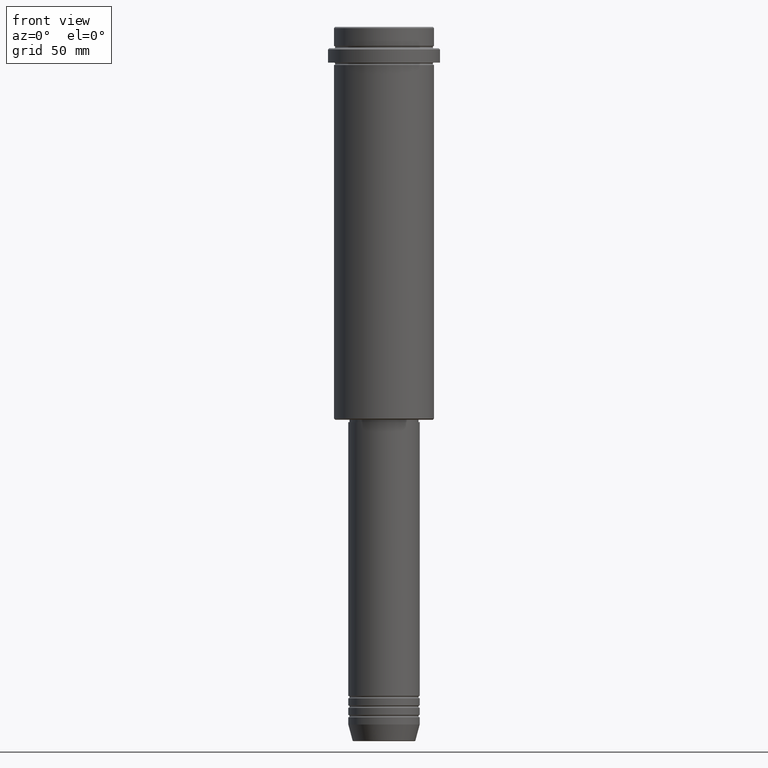
[diagram: clean part render]
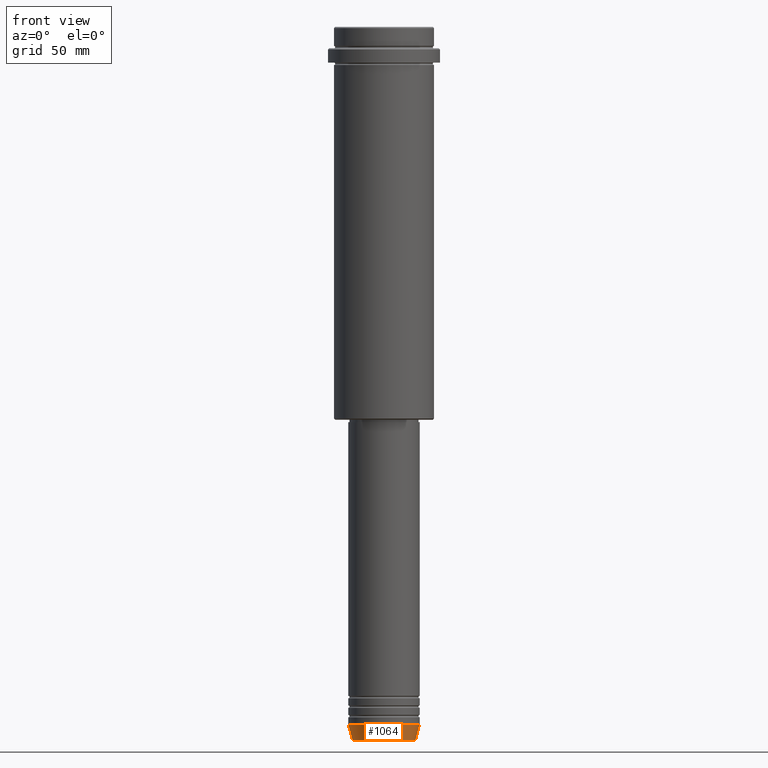
[diagram: same view with one face highlighted and labeled with its STEP entity id]
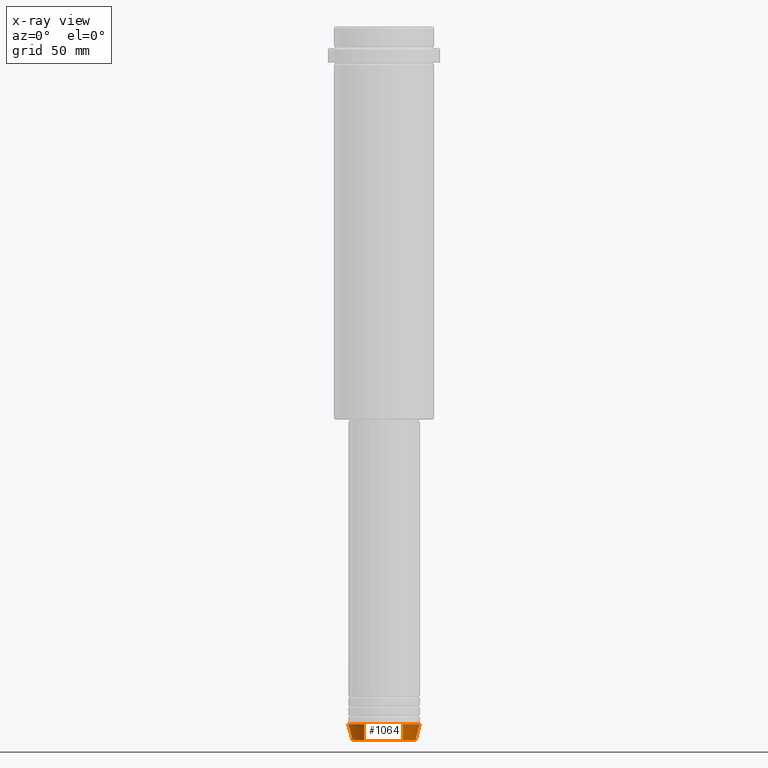
[diagram: x-ray of the same camera — body ghosted, the highlighted face saturated]
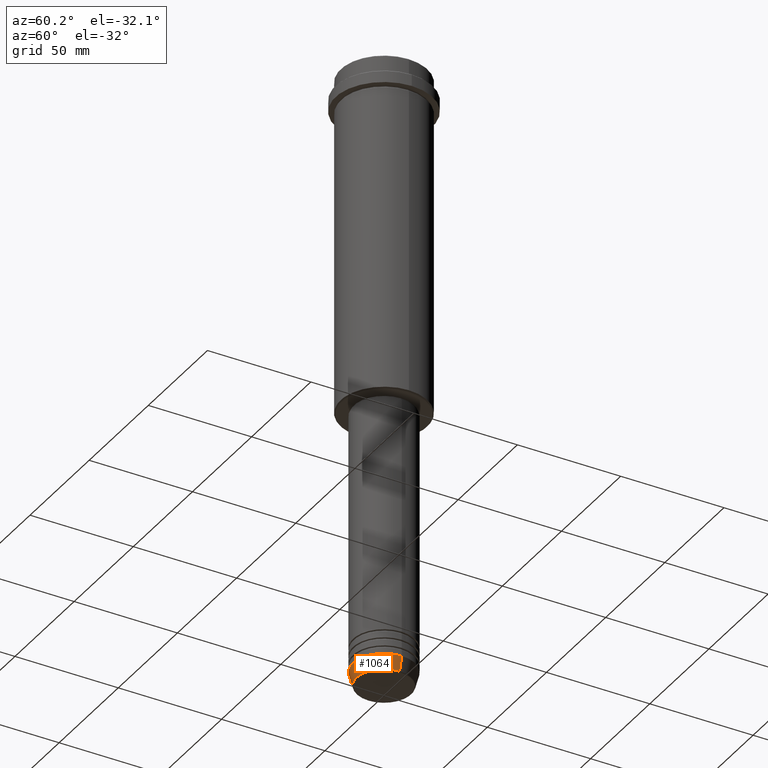
[diagram: same view with one face highlighted and labeled with its STEP entity id]
A machine part, front view. The second image highlights one B-rep face of the part: STEP entity #1064.
The next image is the same camera in x-ray: the body ghosted, the highlighted face saturated — about 0% of this face is hidden behind the body in this view.
A second angle (auxiliary view) of the same face is appended — the face is thin or edge-on in the first view.
In plain terms, the highlighted conical surface has half-angle 15 deg.
Its self-contained STEP definition (entity closure, byte-faithful):
#57 = ORIENTED_EDGE ( 'NONE', *, *, #199, .F. ) ;
#66 = EDGE_LOOP ( 'NONE', ( #57, #1006, #518, #193 ) ) ;
#104 = CARTESIAN_POINT ( 'NONE',  ( 0.000000000000000000, 0.000000000000000000, -293.0000000000000568 ) ) ;
#165 = DIRECTION ( 'NONE',  ( -0.000000000000000000, -0.000000000000000000, 1.000000000000000000 ) ) ;
#191 = EDGE_CURVE ( 'NONE', #206, #961, #679, .T. ) ;
#193 = ORIENTED_EDGE ( 'NONE', *, *, #191, .F. ) ;
#199 = EDGE_CURVE ( 'NONE', #802, #206, #1191, .T. ) ;
#206 = VERTEX_POINT ( 'NONE', #1083 ) ;
#247 = CARTESIAN_POINT ( 'NONE',  ( -15.00000000000000000, 1.836970198721029589E-15, -293.0000000000000568 ) ) ;
#254 = DIRECTION ( 'NONE',  ( -0.000000000000000000, -0.000000000000000000, 1.000000000000000000 ) ) ;
#273 = FACE_OUTER_BOUND ( 'NONE', #66, .T. ) ;
#290 = CARTESIAN_POINT ( 'NONE',  ( 13.22365507213718772, 0.000000000000000000, -299.6294095225513274 ) ) ;
#303 = DIRECTION ( 'NONE',  ( 0.2588190451025213501, 0.000000000000000000, 0.9659258262890680902 ) ) ;
#321 = DIRECTION ( 'NONE',  ( -0.2588190451025213501, 3.169619151431772337E-17, 0.9659258262890680902 ) ) ;
#393 = VECTOR ( 'NONE', #321, 1000.000000000000000 ) ;
#423 = EDGE_CURVE ( 'NONE', #802, #1203, #508, .T. ) ;
#508 = CIRCLE ( 'NONE', #1323, 13.22365507213718772 ) ;
#518 = ORIENTED_EDGE ( 'NONE', *, *, #1117, .T. ) ;
#521 = LINE ( 'NONE', #1408, #954 ) ;
#532 = DIRECTION ( 'NONE',  ( -0.000000000000000000, -0.000000000000000000, 1.000000000000000000 ) ) ;
#555 = CARTESIAN_POINT ( 'NONE',  ( -13.22365507213718772, 1.728200442216588386E-15, -299.6294095225513274 ) ) ;
#601 = DIRECTION ( 'NONE',  ( 1.000000000000000000, 0.000000000000000000, 0.000000000000000000 ) ) ;
#616 = CARTESIAN_POINT ( 'NONE',  ( 0.000000000000000000, 0.000000000000000000, -293.0000000000000568 ) ) ;
#679 = CIRCLE ( 'NONE', #969, 15.00000000000000000 ) ;
#732 = AXIS2_PLACEMENT_3D ( 'NONE', #616, #165, #601 ) ;
#802 = VERTEX_POINT ( 'NONE', #555 ) ;
#806 = CARTESIAN_POINT ( 'NONE',  ( 0.000000000000000000, 0.000000000000000000, -299.6294095225513274 ) ) ;
#870 = DIRECTION ( 'NONE',  ( 1.000000000000000000, 0.000000000000000000, 0.000000000000000000 ) ) ;
#954 = VECTOR ( 'NONE', #303, 1000.000000000000000 ) ;
#961 = VERTEX_POINT ( 'NONE', #1271 ) ;
#969 = AXIS2_PLACEMENT_3D ( 'NONE', #104, #532, #870 ) ;
#971 = CONICAL_SURFACE ( 'NONE', #732, 15.00000000000000000, 0.2617993877991500740 ) ;
#1006 = ORIENTED_EDGE ( 'NONE', *, *, #423, .T. ) ;
#1064 = ADVANCED_FACE ( 'NONE', ( #273 ), #971, .T. ) ;
#1083 = CARTESIAN_POINT ( 'NONE',  ( -15.00000000000000000, 1.836970198721029589E-15, -293.0000000000000568 ) ) ;
#1117 = EDGE_CURVE ( 'NONE', #1203, #961, #521, .T. ) ;
#1191 = LINE ( 'NONE', #247, #393 ) ;
#1203 = VERTEX_POINT ( 'NONE', #290 ) ;
#1271 = CARTESIAN_POINT ( 'NONE',  ( 15.00000000000000000, 0.000000000000000000, -293.0000000000000568 ) ) ;
#1323 = AXIS2_PLACEMENT_3D ( 'NONE', #806, #254, #1337 ) ;
#1337 = DIRECTION ( 'NONE',  ( 1.000000000000000000, 0.000000000000000000, 0.000000000000000000 ) ) ;
#1408 = CARTESIAN_POINT ( 'NONE',  ( 15.00000000000000000, 0.000000000000000000, -293.0000000000000568 ) ) ;